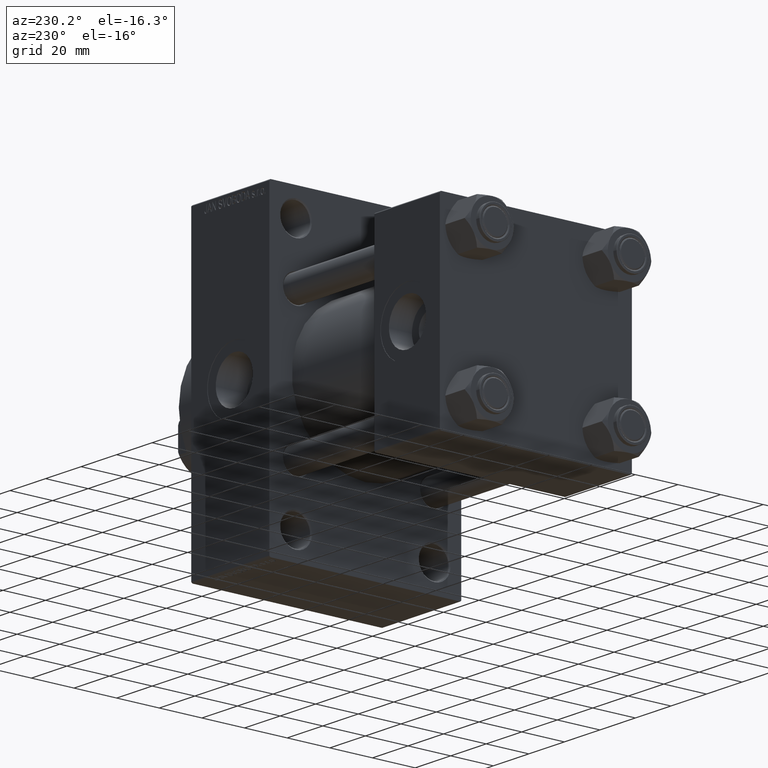
[diagram: clean part render]
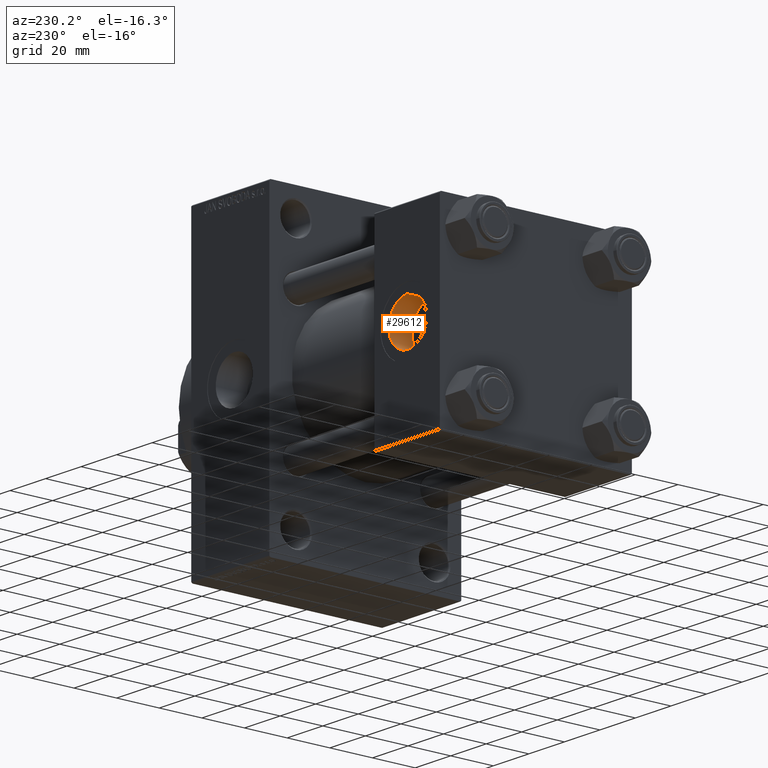
[diagram: same view with one face highlighted and labeled with its STEP entity id]
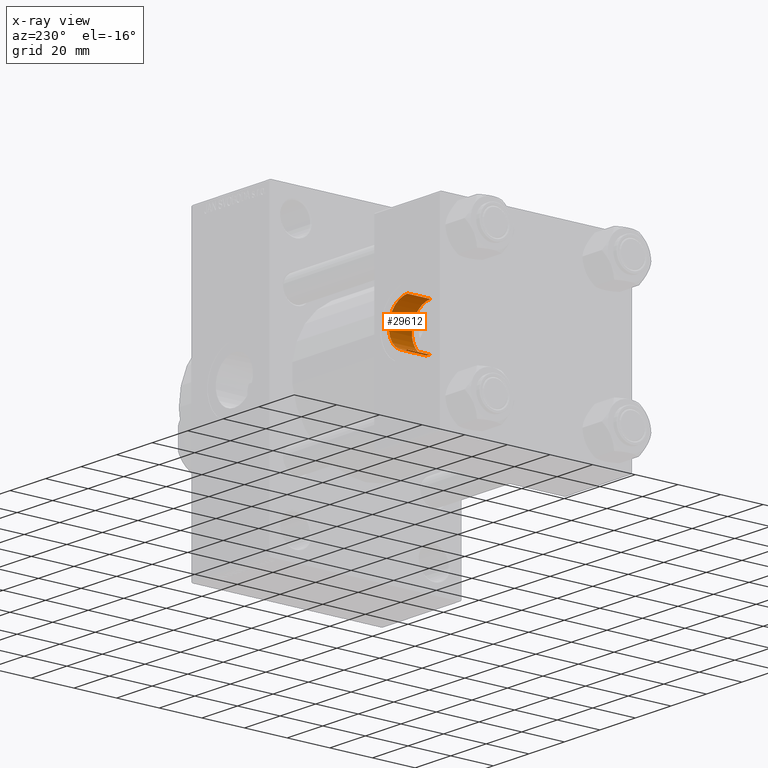
[diagram: x-ray of the same camera — body ghosted, the highlighted face saturated]
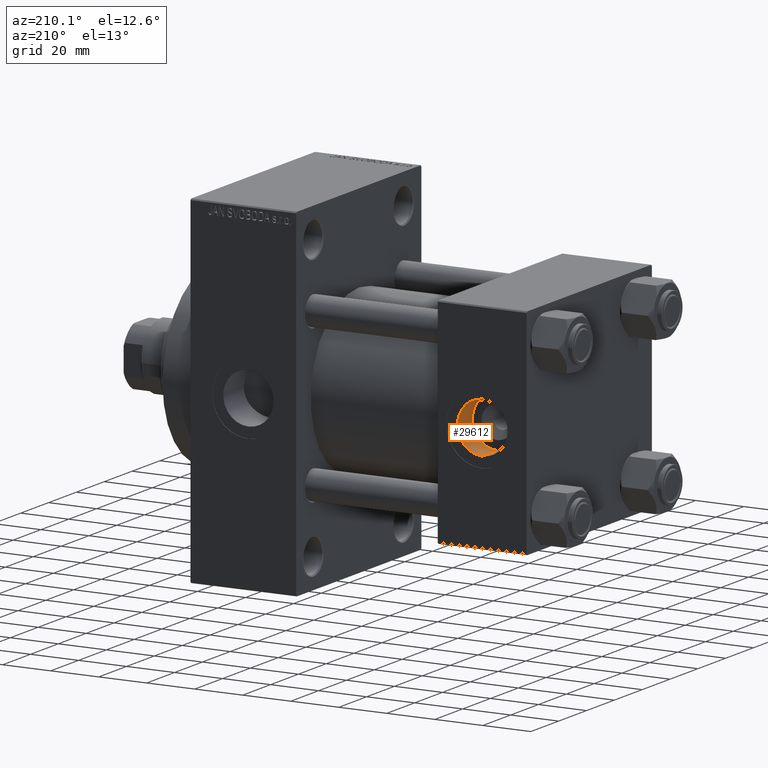
[diagram: same view with one face highlighted and labeled with its STEP entity id]
A machine part, auxiliary view. The second image highlights one B-rep face of the part: STEP entity #29612.
The next image is the same camera in x-ray: the body ghosted, the highlighted face saturated — about 0% of this face is hidden behind the body in this view.
A second angle (auxiliary view) of the same face is appended — the face is thin or edge-on in the first view.
In plain terms, the highlighted cylindrical surface (edge-blend (fillet) strip) has radius 10.48 mm, axis along (0, 1, 0).
Its self-contained STEP definition (entity closure, byte-faithful):
#1748 = ORIENTED_EDGE ( 'NONE', *, *, #24087, .F. ) ;
#2357 = CARTESIAN_POINT ( 'NONE',  ( 18.50000000000000000, 33.99999999999998579, 10.48000000000000043 ) ) ;
#4225 = CIRCLE ( 'NONE', #32463, 10.48000000000000043 ) ;
#6409 = LINE ( 'NONE', #2357, #38475 ) ;
#6740 = CIRCLE ( 'NONE', #33423, 10.48000000000000043 ) ;
#8007 = DIRECTION ( 'NONE',  ( -0.000000000000000000, 1.000000000000000000, -0.000000000000000000 ) ) ;
#12182 = AXIS2_PLACEMENT_3D ( 'NONE', #33099, #8007, #22080 ) ;
#12403 = ORIENTED_EDGE ( 'NONE', *, *, #44771, .T. ) ;
#13411 = VECTOR ( 'NONE', #15012, 1000.000000000000000 ) ;
#13419 = VERTEX_POINT ( 'NONE', #34508 ) ;
#15012 = DIRECTION ( 'NONE',  ( -0.000000000000000000, 1.000000000000000000, -0.000000000000000000 ) ) ;
#17383 = CARTESIAN_POINT ( 'NONE',  ( 18.50000000000000000, 44.79999999999998295, 10.48000000000000043 ) ) ;
#17840 = DIRECTION ( 'NONE',  ( 0.000000000000000000, 1.000000000000000000, 0.000000000000000000 ) ) ;
#18076 = CARTESIAN_POINT ( 'NONE',  ( 18.50000000000000000, 44.79999999999998295, 0.000000000000000000 ) ) ;
#18243 = CARTESIAN_POINT ( 'NONE',  ( 18.50000000000000000, 44.79999999999998295, -10.48000000000000043 ) ) ;
#20016 = DIRECTION ( 'NONE',  ( 0.000000000000000000, 0.000000000000000000, 1.000000000000000000 ) ) ;
#20957 = DIRECTION ( 'NONE',  ( -0.000000000000000000, 1.000000000000000000, -0.000000000000000000 ) ) ;
#21694 = ORIENTED_EDGE ( 'NONE', *, *, #26506, .T. ) ;
#22080 = DIRECTION ( 'NONE',  ( 0.000000000000000000, 0.000000000000000000, 1.000000000000000000 ) ) ;
#24087 = EDGE_CURVE ( 'NONE', #13419, #43862, #40563, .T. ) ;
#24364 = EDGE_LOOP ( 'NONE', ( #1748, #41275, #12403, #21694 ) ) ;
#26002 = CARTESIAN_POINT ( 'NONE',  ( 18.50000000000000000, 33.99999999999998579, 10.48000000000000043 ) ) ;
#26506 = EDGE_CURVE ( 'NONE', #26554, #43862, #6740, .T. ) ;
#26554 = VERTEX_POINT ( 'NONE', #17383 ) ;
#27187 = CARTESIAN_POINT ( 'NONE',  ( 18.50000000000000000, 33.99999999999998579, 0.000000000000000000 ) ) ;
#27424 = DIRECTION ( 'NONE',  ( 0.000000000000000000, 1.000000000000000000, 0.000000000000000000 ) ) ;
#28125 = DIRECTION ( 'NONE',  ( 0.000000000000000000, 0.000000000000000000, 1.000000000000000000 ) ) ;
#29612 = ADVANCED_FACE ( 'NONE', ( #36445 ), #37141, .F. ) ;
#32463 = AXIS2_PLACEMENT_3D ( 'NONE', #27187, #27424, #20016 ) ;
#33099 = CARTESIAN_POINT ( 'NONE',  ( 18.50000000000000000, 33.99999999999998579, 0.000000000000000000 ) ) ;
#33423 = AXIS2_PLACEMENT_3D ( 'NONE', #18076, #17840, #28125 ) ;
#34118 = CARTESIAN_POINT ( 'NONE',  ( 18.50000000000000000, 33.99999999999998579, -10.48000000000000043 ) ) ;
#34508 = CARTESIAN_POINT ( 'NONE',  ( 18.50000000000000000, 33.99999999999998579, -10.48000000000000043 ) ) ;
#36445 = FACE_OUTER_BOUND ( 'NONE', #24364, .T. ) ;
#37141 = CYLINDRICAL_SURFACE ( 'NONE', #12182, 10.48000000000000043 ) ;
#38475 = VECTOR ( 'NONE', #20957, 1000.000000000000000 ) ;
#40563 = LINE ( 'NONE', #34118, #13411 ) ;
#41275 = ORIENTED_EDGE ( 'NONE', *, *, #46397, .F. ) ;
#41288 = VERTEX_POINT ( 'NONE', #26002 ) ;
#43862 = VERTEX_POINT ( 'NONE', #18243 ) ;
#44771 = EDGE_CURVE ( 'NONE', #41288, #26554, #6409, .T. ) ;
#46397 = EDGE_CURVE ( 'NONE', #41288, #13419, #4225, .T. ) ;